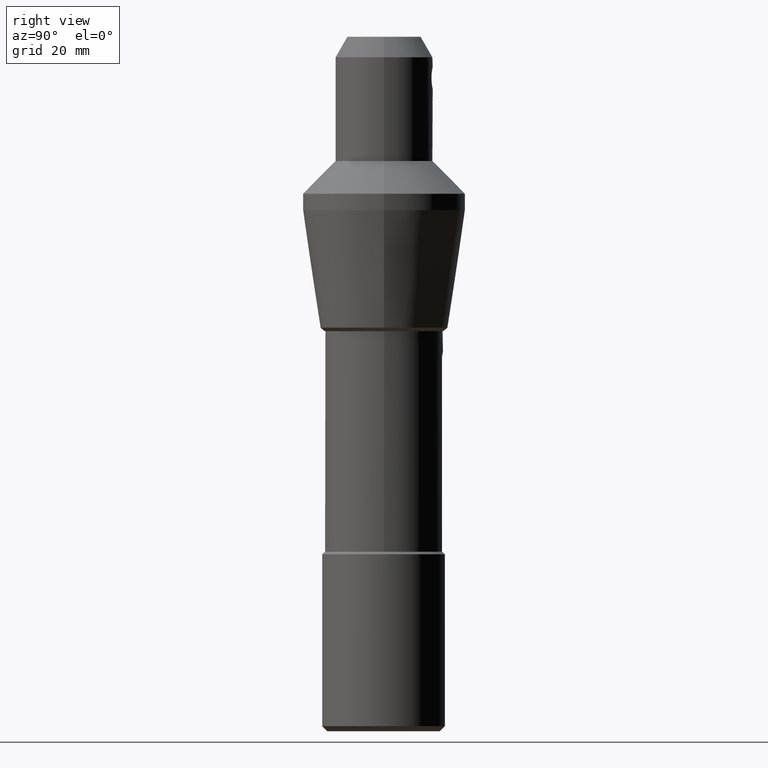
[diagram: clean part render]
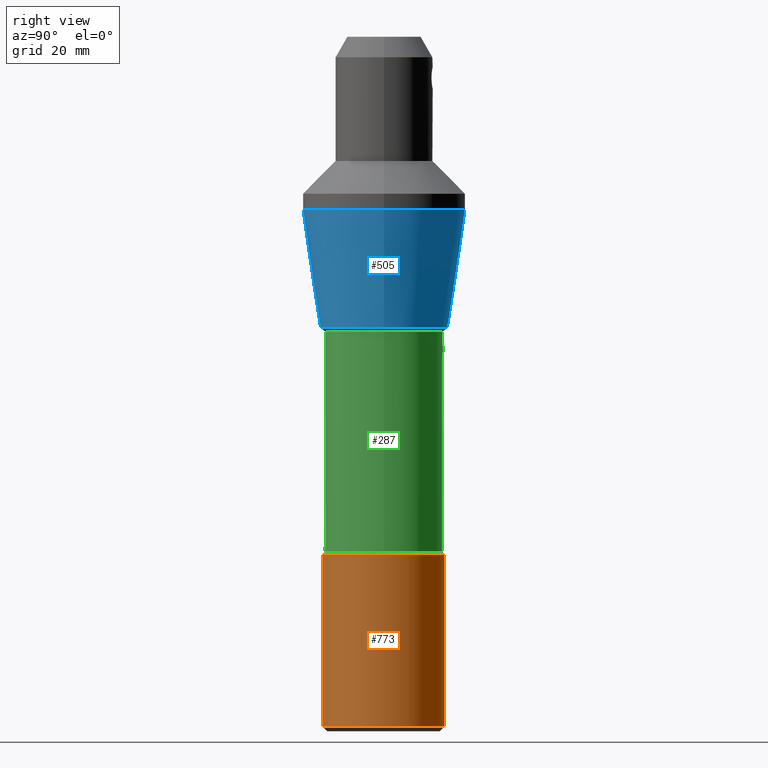
[diagram: same view with three faces highlighted in distinct colors, each labeled with its STEP entity id]
A machine part, right view with three faces highlighted in distinct colors.
Their STEP definitions:

[orange] entity #773 — the highlighted cylindrical surface (partial cylindrical patch) has radius 12.05 mm, axis along (-0, -0, 1).
#1 = DIRECTION ( 'NONE',  ( 1.000000000000000000, 0.0000000000000000000, 0.0000000000000000000 ) ) ;
#2 = VECTOR ( 'NONE', #225, 1000.000000000000000 ) ;
#15 = AXIS2_PLACEMENT_3D ( 'NONE', #805, #691, #1 ) ;
#35 = LINE ( 'NONE', #540, #765 ) ;
#42 = VERTEX_POINT ( 'NONE', #673 ) ;
#56 = CYLINDRICAL_SURFACE ( 'NONE', #15, 12.04999999999994920 ) ;
#86 = CARTESIAN_POINT ( 'NONE',  ( 0.0000000000000000000, 0.0000000000000000000, -67.09999999999982379 ) ) ;
#88 = ORIENTED_EDGE ( 'NONE', *, *, #144, .T. ) ;
#144 = EDGE_CURVE ( 'NONE', #806, #301, #35, .T. ) ;
#164 = EDGE_CURVE ( 'NONE', #42, #806, #445, .T. ) ;
#219 = VERTEX_POINT ( 'NONE', #599 ) ;
#222 = ORIENTED_EDGE ( 'NONE', *, *, #715, .F. ) ;
#225 = DIRECTION ( 'NONE',  ( -0.0000000000000000000, -0.0000000000000000000, 1.000000000000000000 ) ) ;
#252 = EDGE_CURVE ( 'NONE', #42, #219, #418, .T. ) ;
#288 = DIRECTION ( 'NONE',  ( -0.0000000000000000000, -0.0000000000000000000, 1.000000000000000000 ) ) ;
#290 = ORIENTED_EDGE ( 'NONE', *, *, #252, .F. ) ;
#301 = VERTEX_POINT ( 'NONE', #420 ) ;
#307 = AXIS2_PLACEMENT_3D ( 'NONE', #86, #338, #776 ) ;
#336 = CARTESIAN_POINT ( 'NONE',  ( 0.0000000000000000000, 0.0000000000000000000, -100.5999999999998664 ) ) ;
#338 = DIRECTION ( 'NONE',  ( -0.0000000000000000000, -0.0000000000000000000, 1.000000000000000000 ) ) ;
#353 = CARTESIAN_POINT ( 'NONE',  ( -2.100000000000000089, 11.86560154395885647, 4.364367297826535541 ) ) ;
#361 = EDGE_LOOP ( 'NONE', ( #290, #533, #88, #222 ) ) ;
#418 = LINE ( 'NONE', #353, #2 ) ;
#420 = CARTESIAN_POINT ( 'NONE',  ( 2.100000000000000089, 11.86560154395885647, -67.09999999999982379 ) ) ;
#445 = CIRCLE ( 'NONE', #741, 12.04999999999994920 ) ;
#469 = CARTESIAN_POINT ( 'NONE',  ( 2.100000000000000089, 11.86560154395885647, -100.5999999999998664 ) ) ;
#529 = DIRECTION ( 'NONE',  ( 1.000000000000000000, 0.0000000000000000000, 0.0000000000000000000 ) ) ;
#533 = ORIENTED_EDGE ( 'NONE', *, *, #164, .T. ) ;
#536 = DIRECTION ( 'NONE',  ( -0.0000000000000000000, -0.0000000000000000000, 1.000000000000000000 ) ) ;
#540 = CARTESIAN_POINT ( 'NONE',  ( 2.100000000000000089, 11.86560154395885647, 4.364367297826535541 ) ) ;
#597 = CIRCLE ( 'NONE', #307, 12.04999999999994920 ) ;
#599 = CARTESIAN_POINT ( 'NONE',  ( -2.100000000000000089, 11.86560154395885647, -67.09999999999982379 ) ) ;
#625 = FACE_OUTER_BOUND ( 'NONE', #361, .T. ) ;
#673 = CARTESIAN_POINT ( 'NONE',  ( -2.100000000000000089, 11.86560154395885647, -100.5999999999998664 ) ) ;
#691 = DIRECTION ( 'NONE',  ( -0.0000000000000000000, -0.0000000000000000000, 1.000000000000000000 ) ) ;
#715 = EDGE_CURVE ( 'NONE', #219, #301, #597, .T. ) ;
#741 = AXIS2_PLACEMENT_3D ( 'NONE', #336, #288, #529 ) ;
#765 = VECTOR ( 'NONE', #536, 1000.000000000000000 ) ;
#773 = ADVANCED_FACE ( 'NONE', ( #625 ), #56, .T. ) ;
#776 = DIRECTION ( 'NONE',  ( 1.000000000000000000, 0.0000000000000000000, 0.0000000000000000000 ) ) ;
#805 = CARTESIAN_POINT ( 'NONE',  ( 0.0000000000000000000, 0.0000000000000000000, 4.364367297826535541 ) ) ;
#806 = VERTEX_POINT ( 'NONE', #469 ) ;

[blue] entity #505 — the highlighted conical surface has half-angle 8.5 deg.
#4 = DIRECTION ( 'NONE',  ( -0.0000000000000000000, -0.0000000000000000000, 1.000000000000000000 ) ) ;
#20 = VERTEX_POINT ( 'NONE', #698 ) ;
#78 = CARTESIAN_POINT ( 'NONE',  ( 0.0000000000000000000, 0.0000000000000000000, -22.90768889564642663 ) ) ;
#93 = AXIS2_PLACEMENT_3D ( 'NONE', #78, #4, #386 ) ;
#104 = EDGE_CURVE ( 'NONE', #327, #327, #264, .T. ) ;
#229 = ORIENTED_EDGE ( 'NONE', *, *, #104, .F. ) ;
#237 = ORIENTED_EDGE ( 'NONE', *, *, #764, .T. ) ;
#264 = CIRCLE ( 'NONE', #485, 15.87499999999994493 ) ;
#316 = DIRECTION ( 'NONE',  ( -0.0000000000000000000, -0.0000000000000000000, 1.000000000000000000 ) ) ;
#327 = VERTEX_POINT ( 'NONE', #647 ) ;
#343 = EDGE_LOOP ( 'NONE', ( #229 ) ) ;
#386 = DIRECTION ( 'NONE',  ( 1.000000000000000000, 0.0000000000000000000, 0.0000000000000000000 ) ) ;
#387 = CARTESIAN_POINT ( 'NONE',  ( 0.0000000000000000000, 0.0000000000000000000, 0.0000000000000000000 ) ) ;
#441 = FACE_OUTER_BOUND ( 'NONE', #343, .T. ) ;
#448 = DIRECTION ( 'NONE',  ( -0.0000000000000000000, -0.0000000000000000000, 1.000000000000000000 ) ) ;
#485 = AXIS2_PLACEMENT_3D ( 'NONE', #387, #448, #645 ) ;
#505 = ADVANCED_FACE ( 'NONE', ( #441, #570 ), #509, .T. ) ;
#509 = CONICAL_SURFACE ( 'NONE', #93, 12.45142295595127990, 0.1483529864195184678 ) ;
#546 = AXIS2_PLACEMENT_3D ( 'NONE', #744, #316, #629 ) ;
#570 = FACE_BOUND ( 'NONE', #621, .T. ) ;
#621 = EDGE_LOOP ( 'NONE', ( #237 ) ) ;
#629 = DIRECTION ( 'NONE',  ( 1.000000000000000000, 0.0000000000000000000, 0.0000000000000000000 ) ) ;
#645 = DIRECTION ( 'NONE',  ( 1.000000000000000000, 0.0000000000000000000, 0.0000000000000000000 ) ) ;
#647 = CARTESIAN_POINT ( 'NONE',  ( 15.87499999999994493, 0.0000000000000000000, 0.0000000000000000000 ) ) ;
#698 = CARTESIAN_POINT ( 'NONE',  ( 12.45142295595127990, 0.0000000000000000000, -22.90768889564642663 ) ) ;
#701 = CIRCLE ( 'NONE', #546, 12.45142295595127990 ) ;
#744 = CARTESIAN_POINT ( 'NONE',  ( 0.0000000000000000000, 0.0000000000000000000, -22.90768889564642663 ) ) ;
#764 = EDGE_CURVE ( 'NONE', #20, #20, #701, .T. ) ;

[green] entity #287 — the highlighted cylindrical surface (bore or boss wall) has radius 11.5 mm, axis along (-0, -0, 1).
#34 = EDGE_CURVE ( 'NONE', #743, #152, #157, .T. ) ;
#39 = VECTOR ( 'NONE', #194, 1000.000000000000000 ) ;
#53 = CARTESIAN_POINT ( 'NONE',  ( 1.467863262598873231, 11.41159724547885190, -27.92280294470764801 ) ) ;
#70 = CIRCLE ( 'NONE', #212, 11.49999999999998224 ) ;
#77 = CARTESIAN_POINT ( 'NONE',  ( 11.49999999999998224, 0.0000000000000000000, -23.59999999999975984 ) ) ;
#110 = FACE_OUTER_BOUND ( 'NONE', #554, .T. ) ;
#122 = CIRCLE ( 'NONE', #569, 11.49999999999998224 ) ;
#126 = CARTESIAN_POINT ( 'NONE',  ( -2.100000000000000089, 11.30663522008203792, -28.32452941635697741 ) ) ;
#152 = VERTEX_POINT ( 'NONE', #655 ) ;
#157 = B_SPLINE_CURVE_WITH_KNOTS ( 'NONE', 3,
 ( #306, #167, #53, #818, #425, #249, #431, #184, #689, #126 ),
 .UNSPECIFIED., .F., .F.,
 ( 4, 2, 2, 2, 4 ),
 ( 0.0000000000000000000, 0.001130883958047212371, 0.002261767916094424742, 0.003392651874141637113, 0.004523535832188849484 ),
 .UNSPECIFIED. ) ;
#159 = ORIENTED_EDGE ( 'NONE', *, *, #515, .F. ) ;
#167 = CARTESIAN_POINT ( 'NONE',  ( 1.795522252043246558, 11.36318637418432331, -28.10288945346085754 ) ) ;
#180 = DIRECTION ( 'NONE',  ( -0.0000000000000000000, -0.0000000000000000000, 1.000000000000000000 ) ) ;
#184 = CARTESIAN_POINT ( 'NONE',  ( -1.467469665440356064, 11.41165974144372086, -27.92256978922634758 ) ) ;
#194 = DIRECTION ( 'NONE',  ( -0.0000000000000000000, -0.0000000000000000000, 1.000000000000000000 ) ) ;
#212 = AXIS2_PLACEMENT_3D ( 'NONE', #539, #341, #465 ) ;
#233 = FACE_OUTER_BOUND ( 'NONE', #501, .T. ) ;
#249 = CARTESIAN_POINT ( 'NONE',  ( -0.3790474823127402138, 11.50005798455130090, -27.60132592127435558 ) ) ;
#255 = DIRECTION ( 'NONE',  ( -0.0000000000000000000, -0.0000000000000000000, 1.000000000000000000 ) ) ;
#287 = ADVANCED_FACE ( 'NONE', ( #110, #233 ), #364, .T. ) ;
#306 = CARTESIAN_POINT ( 'NONE',  ( 2.100000000000000089, 11.30663522008203792, -28.32452941635697741 ) ) ;
#320 = VERTEX_POINT ( 'NONE', #77 ) ;
#341 = DIRECTION ( 'NONE',  ( -0.0000000000000000000, -0.0000000000000000000, 1.000000000000000000 ) ) ;
#363 = EDGE_CURVE ( 'NONE', #609, #152, #493, .T. ) ;
#364 = CYLINDRICAL_SURFACE ( 'NONE', #442, 11.49999999999998224 ) ;
#374 = VECTOR ( 'NONE', #802, 1000.000000000000000 ) ;
#375 = ORIENTED_EDGE ( 'NONE', *, *, #34, .T. ) ;
#380 = ORIENTED_EDGE ( 'NONE', *, *, #462, .T. ) ;
#425 = CARTESIAN_POINT ( 'NONE',  ( 0.3825577658635889167, 11.49994174757712706, -27.60174131196035319 ) ) ;
#431 = CARTESIAN_POINT ( 'NONE',  ( -0.7512554845307413132, 11.48107401206165257, -27.66845374771349597 ) ) ;
#442 = AXIS2_PLACEMENT_3D ( 'NONE', #615, #180, #807 ) ;
#446 = CARTESIAN_POINT ( 'NONE',  ( 2.100000000000000089, 11.30663522008203792, -28.32452941635697741 ) ) ;
#462 = EDGE_CURVE ( 'NONE', #491, #743, #567, .T. ) ;
#465 = DIRECTION ( 'NONE',  ( 1.000000000000000000, 0.0000000000000000000, 0.0000000000000000000 ) ) ;
#481 = ORIENTED_EDGE ( 'NONE', *, *, #646, .T. ) ;
#491 = VERTEX_POINT ( 'NONE', #767 ) ;
#493 = LINE ( 'NONE', #560, #374 ) ;
#501 = EDGE_LOOP ( 'NONE', ( #611, #481, #380, #375 ) ) ;
#515 = EDGE_CURVE ( 'NONE', #320, #320, #122, .T. ) ;
#539 = CARTESIAN_POINT ( 'NONE',  ( 0.0000000000000000000, 0.0000000000000000000, -66.59999999999976694 ) ) ;
#554 = EDGE_LOOP ( 'NONE', ( #159 ) ) ;
#560 = CARTESIAN_POINT ( 'NONE',  ( -2.100000000000000089, 11.30663522008203792, 4.364367297826535541 ) ) ;
#567 = LINE ( 'NONE', #575, #39 ) ;
#569 = AXIS2_PLACEMENT_3D ( 'NONE', #637, #255, #758 ) ;
#575 = CARTESIAN_POINT ( 'NONE',  ( 2.100000000000000089, 11.30663522008203792, 4.364367297826535541 ) ) ;
#588 = CARTESIAN_POINT ( 'NONE',  ( -2.100000000000000089, 11.30663522008203792, -66.59999999999976694 ) ) ;
#609 = VERTEX_POINT ( 'NONE', #588 ) ;
#611 = ORIENTED_EDGE ( 'NONE', *, *, #363, .F. ) ;
#615 = CARTESIAN_POINT ( 'NONE',  ( 0.0000000000000000000, 0.0000000000000000000, 4.364367297826535541 ) ) ;
#637 = CARTESIAN_POINT ( 'NONE',  ( 0.0000000000000000000, 0.0000000000000000000, -23.59999999999975984 ) ) ;
#646 = EDGE_CURVE ( 'NONE', #609, #491, #70, .T. ) ;
#655 = CARTESIAN_POINT ( 'NONE',  ( -2.100000000000000089, 11.30663522008203792, -28.32452941635697741 ) ) ;
#689 = CARTESIAN_POINT ( 'NONE',  ( -1.795443634656580079, 11.36320097592116163, -28.10283222512554246 ) ) ;
#743 = VERTEX_POINT ( 'NONE', #446 ) ;
#758 = DIRECTION ( 'NONE',  ( 1.000000000000000000, 0.0000000000000000000, 0.0000000000000000000 ) ) ;
#767 = CARTESIAN_POINT ( 'NONE',  ( 2.100000000000000089, 11.30663522008203792, -66.59999999999976694 ) ) ;
#802 = DIRECTION ( 'NONE',  ( -0.0000000000000000000, -0.0000000000000000000, 1.000000000000000000 ) ) ;
#807 = DIRECTION ( 'NONE',  ( 1.000000000000000000, 0.0000000000000000000, 0.0000000000000000000 ) ) ;
#818 = CARTESIAN_POINT ( 'NONE',  ( 0.7524039246546920801, 11.48098700395013516, -27.66876791536977720 ) ) ;